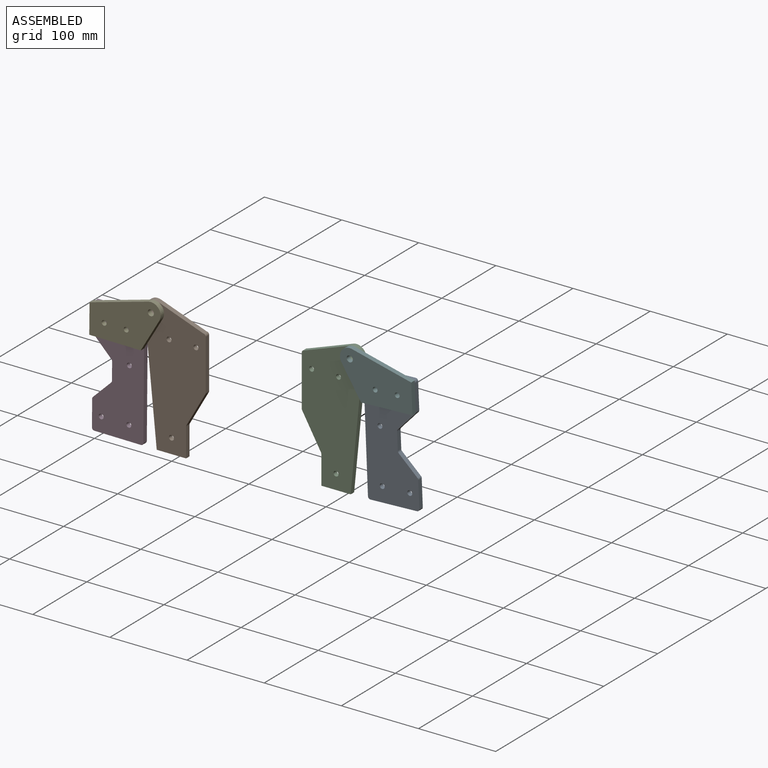
[diagram: assembled view]
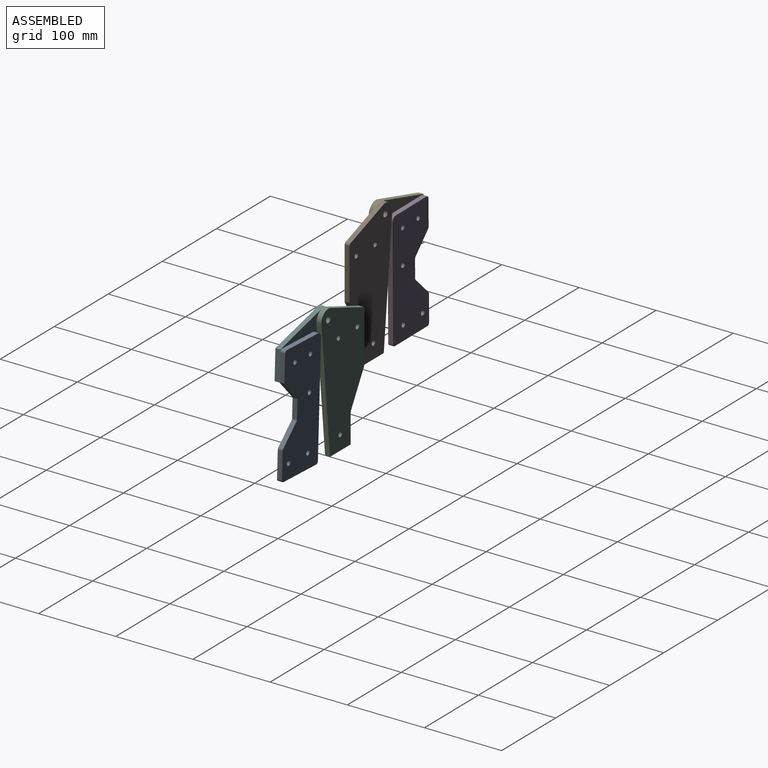
[diagram: assembled view, second angle]
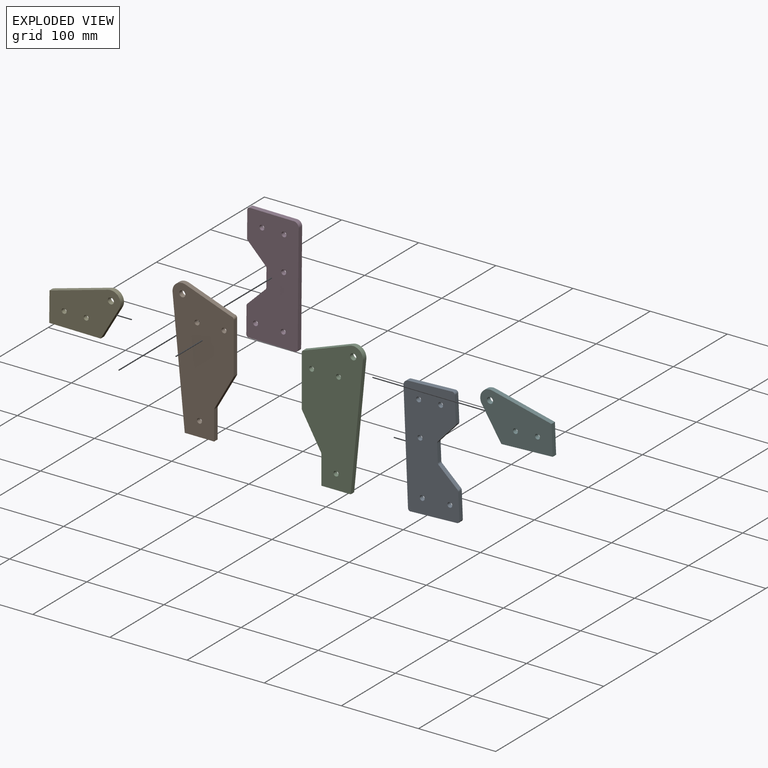
[diagram: exploded view]
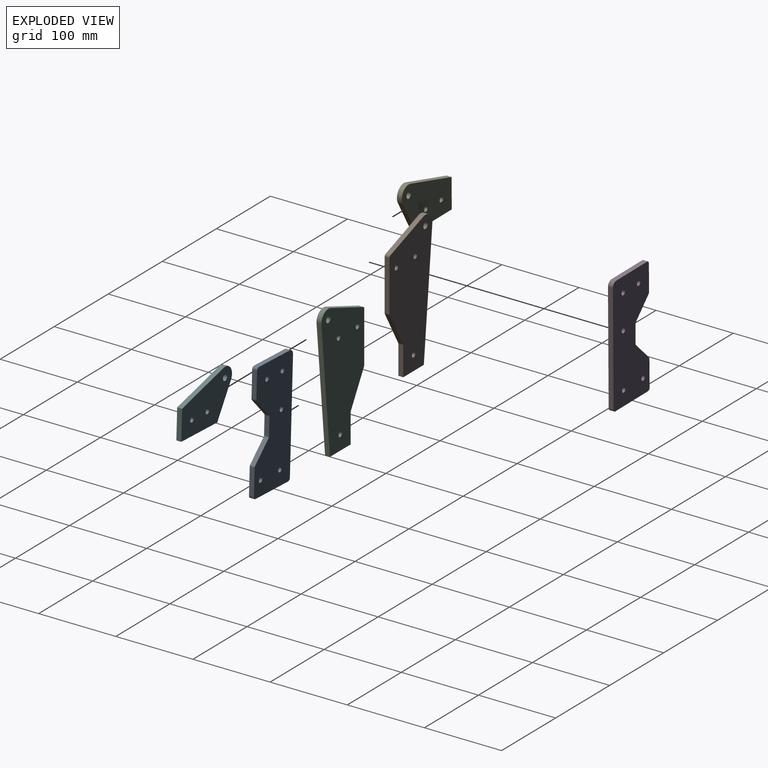
[diagram: exploded view, second angle]
ASSEMBLY  parts=6 mates=4
PART A: 23 faces, bbox 66.7x6.4x152.4 mm
  f0: cylinder r=3.17mm len=6.35mm, axis (0,1,0), area 15.8mm2, adj f1,f19,f21,f22
  f1: plane 23.54x23.54mm, normal (0.71,0,-0.71), area 211.4mm2, adj f0,f2,f21,f22
  f2: cylinder r=3.17mm len=6.35mm, axis (0,1,0), area 15.8mm2, adj f1,f3,f21,f22
  f3: plane 33.61x6.35mm, normal (1,0,0), area 213.4mm2, adj f2,f4,f21,f22
  f4: cylinder r=3.17mm len=6.35mm, axis (0,1,0), area 31.7mm2, adj f3,f5,f21,f22
  f5: plane 57.15x6.35mm, normal (0,0,1), area 362.9mm2, adj f4,f6,f21,f22
  f6: cylinder r=6.35mm len=6.35mm, axis (0,1,0), area 63.3mm2, adj f5,f7,f21,f22
  f7: plane 142.88x6.35mm, normal (-1,0,0), area 907.3mm2, adj f6,f8,f21,f22
  f8: cylinder r=3.17mm len=6.35mm, axis (0,1,0), area 31.7mm2, adj f7,f9,f21,f22
  f9: plane 60.33x6.35mm, normal (0,0,-1), area 383.1mm2, adj f8,f10,f21,f22
  f10: cylinder r=3.17mm len=6.35mm, axis (0,1,0), area 31.7mm2, adj f9,f11,f21,f22
  f11: plane 33.61x6.35mm, normal (1,0,0), area 213.4mm2, adj f10,f12,f21,f22
  f12: cylinder r=3.17mm len=6.35mm, axis (0,1,0), area 15.8mm2, adj f11,f13,f21,f22
  f13: plane 23.54x23.54mm, normal (0.71,0,0.71), area 211.4mm2, adj f12,f14,f21,f22
  f14: cylinder r=3.17mm len=6.35mm, axis (0,1,0), area 15.8mm2, adj f13,f19,f21,f22
  f15: cylinder r=3.17mm len=6.35mm, axis (0,1,0), area 126.7mm2, adj f21,f22
  f16: cylinder r=3.17mm len=6.35mm, axis (0,1,0), area 126.7mm2, adj f21,f22
  f17: cylinder r=3.17mm len=6.35mm, axis (0,1,0), area 126.7mm2, adj f21,f22
  f18: cylinder r=3.17mm len=6.35mm, axis (0,1,0), area 126.7mm2, adj f21,f22
  f19: plane 22.77x6.35mm, normal (1,0,0), area 144.6mm2, adj f0,f14,f21,f22
  f20: cylinder r=3.17mm len=6.35mm, axis (0,1,0), area 126.7mm2, adj f21,f22
  f21: plane 152.4x66.68mm, normal (0,-1,0), area 8697.5mm2, adj f0,f1,f2,f3,f4,f5,f6,f7
  f22: plane 152.4x66.68mm, normal (0,1,0), area 8697.5mm2, adj f0,f1,f2,f3,f4,f5,f6,f7
PART B: 16 faces, bbox 79.4x6.4x174.6 mm
  f0: plane 59.17x21.46mm, normal (0.34,0,0.94), area 399.7mm2, adj f1,f4,f5,f8
  f1: cylinder r=12.7mm len=17.03mm, axis (0,-1,0), area 162.7mm2, adj f0,f2,f4,f5
  f2: plane 160.68x15.81mm, normal (-1,0,-0.1), area 1025.3mm2, adj f1,f4,f5,f9
  f3: cylinder r=3.97mm len=7.94mm, axis (0,-1,0), area 158.3mm2, adj f4,f5
  f4: plane 174.63x79.38mm, normal (0,1,0), area 10113.6mm2, adj f0,f1,f2,f3,f6,f7,f8,f9
  f5: plane 174.63x79.38mm, normal (0,-1,0), area 10113.6mm2, adj f0,f1,f2,f3,f6,f7,f8,f9
  f6: cylinder r=3.17mm len=6.35mm, axis (0,1,0), area 11.9mm2, adj f4,f5,f7,f14
  f7: plane 65.71x6.35mm, normal (1,0,0), area 417.3mm2, adj f4,f5,f6,f8
  f8: cylinder r=3.17mm len=6.35mm, axis (0,1,0), area 31.7mm2, adj f0,f4,f5,f7
  f9: plane 38.1x6.35mm, normal (0,0,-1), area 241.9mm2, adj f2,f4,f5,f10
  f10: plane 37.26x6.35mm, normal (1,0,0), area 236.6mm2, adj f4,f5,f9,f11
  f11: cylinder r=3.17mm len=6.35mm, axis (0,1,0), area 10.4mm2, adj f4,f5,f10,f14
  f12: cylinder r=3.17mm len=6.35mm, axis (0,1,0), area 126.7mm2, adj f4,f5
  f13: cylinder r=3.17mm len=6.35mm, axis (0,1,0), area 126.7mm2, adj f4,f5
  f14: plane 42.92x24.45mm, normal (0.87,0,-0.49), area 313.7mm2, adj f4,f5,f6,f11
  f15: cylinder r=3.17mm len=6.35mm, axis (0,1,0), area 126.7mm2, adj f4,f5
PART C: 16 faces, bbox 79.4x6.4x174.6 mm
  f0: cylinder r=3.17mm len=6.35mm, axis (0,1,0), area 31.7mm2, adj f1,f10,f11,f12
  f1: plane 65.71x6.35mm, normal (-1,0,0), area 417.3mm2, adj f0,f2,f10,f11
  f2: cylinder r=3.17mm len=6.35mm, axis (0,1,0), area 11.9mm2, adj f1,f3,f10,f11
  f3: plane 42.92x24.45mm, normal (-0.87,0,-0.49), area 313.7mm2, adj f2,f4,f10,f11
  f4: cylinder r=3.17mm len=6.35mm, axis (0,1,0), area 10.4mm2, adj f3,f5,f10,f11
  f5: plane 37.26x6.35mm, normal (-1,0,0), area 236.6mm2, adj f4,f9,f10,f11
  f6: cylinder r=3.17mm len=6.35mm, axis (0,1,0), area 126.7mm2, adj f10,f11
  f7: cylinder r=3.17mm len=6.35mm, axis (0,1,0), area 126.7mm2, adj f10,f11
  f8: cylinder r=3.17mm len=6.35mm, axis (0,1,0), area 126.7mm2, adj f10,f11
  f9: plane 38.1x6.35mm, normal (0,0,-1), area 241.9mm2, adj f5,f10,f11,f13
  f10: plane 174.63x79.38mm, normal (0,-1,0), area 10113.6mm2, adj f0,f1,f2,f3,f4,f5,f6,f7
  f11: plane 174.63x79.38mm, normal (0,1,0), area 10113.6mm2, adj f0,f1,f2,f3,f4,f5,f6,f7
  f12: plane 59.17x21.46mm, normal (-0.34,0,0.94), area 399.7mm2, adj f0,f10,f11,f14
  f13: plane 160.68x15.81mm, normal (1,0,-0.1), area 1025.3mm2, adj f9,f10,f11,f14
  f14: cylinder r=12.7mm len=17.03mm, axis (0,-1,0), area 162.7mm2, adj f10,f11,f12,f13
  f15: cylinder r=3.97mm len=7.94mm, axis (0,-1,0), area 158.3mm2, adj f10,f11
PART D: same geometry as A
PART E: 10 faces, bbox 92.1x6.4x60.3 mm
  f0: plane 41.3x23.71mm, normal (-0.87,0,-0.5), area 302.4mm2, adj f1,f6,f8,f9
  f1: plane 66.68x6.35mm, normal (0,0,-1), area 423.4mm2, adj f0,f2,f8,f9
  f2: plane 38.1x6.35mm, normal (1,0,0), area 241.9mm2, adj f1,f3,f8,f9
  f3: plane 75.88x21.73mm, normal (0.28,0,0.96), area 501.2mm2, adj f2,f6,f8,f9
  f4: cylinder r=3.17mm len=6.35mm, axis (0,1,0), area 126.7mm2, adj f8,f9
  f5: cylinder r=3.97mm len=7.94mm, axis (0,1,0), area 158.3mm2, adj f8,f9
  f6: cylinder r=12.7mm len=19.02mm, axis (0,1,0), area 191.2mm2, adj f0,f3,f8,f9
  f7: cylinder r=3.17mm len=6.35mm, axis (0,1,0), area 126.7mm2, adj f8,f9
  f8: plane 92.08x60.33mm, normal (0,-1,0), area 3981.8mm2, adj f0,f1,f2,f3,f4,f5,f6,f7
  f9: plane 92.08x60.33mm, normal (0,1,0), area 3981.8mm2, adj f0,f1,f2,f3,f4,f5,f6,f7
PART F: same geometry as E
PLACE A rot(axis=(0,-1,0),2.3deg) t=(-155.97,35.62,39.21)mm
PLACE B t=(64.08,-35.73,74.89)mm fixed
PLACE C t=(11.56,35.62,49.24)mm fixed
PLACE D rot(axis=(0,0,1),180deg) t=(-19.61,-42.08,70.35)mm
PLACE E rot(axis=(0,0,1),180deg) t=(-19.61,-54.78,70.35)mm
PLACE F rot(axis=(0,-1,0),2.3deg) t=(-155.97,35.62,39.21)mm
MATE revolute C.f14 <-> F.f5  axis (0,-1,0) through (14.74,29.27,128.61)mm
MATE fastened A.f18 <-> F.f4  axis (0,-1,0) through (76.18,29.27,102.52)mm
MATE revolute E.f5 <-> B.f1  axis (0,1,0) through (-193.09,-42.08,154.26)mm
MATE fastened D.f20 <-> E.f7  axis (0,-1,0) through (-225.09,-42.08,125.97)mm
